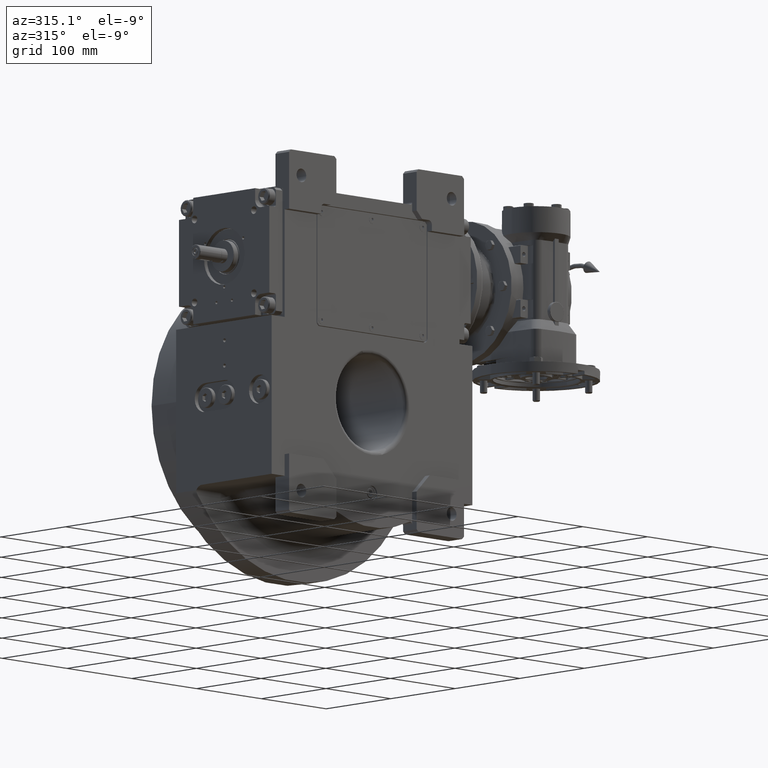
[diagram: clean part render]
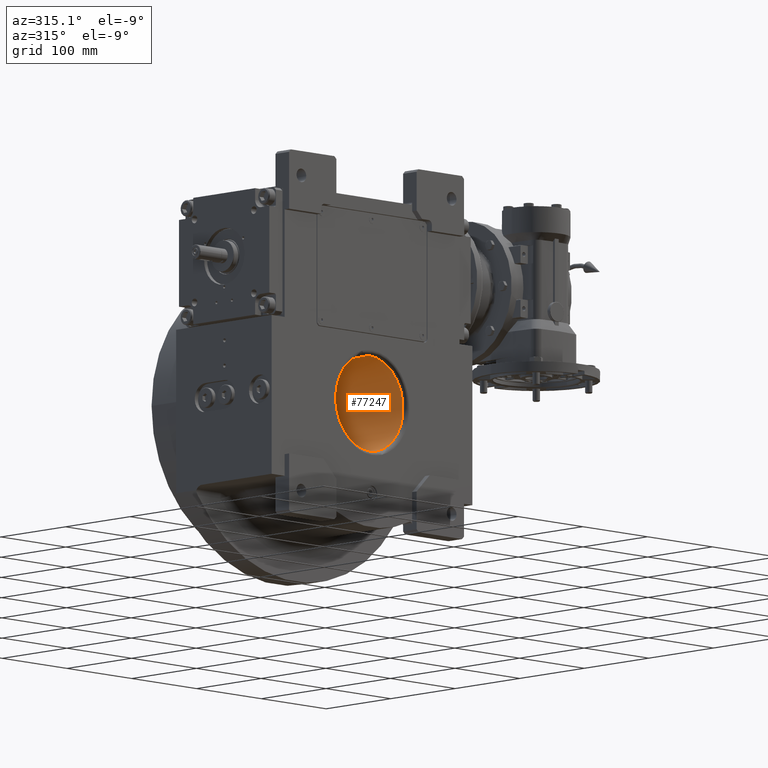
[diagram: same view with one face highlighted and labeled with its STEP entity id]
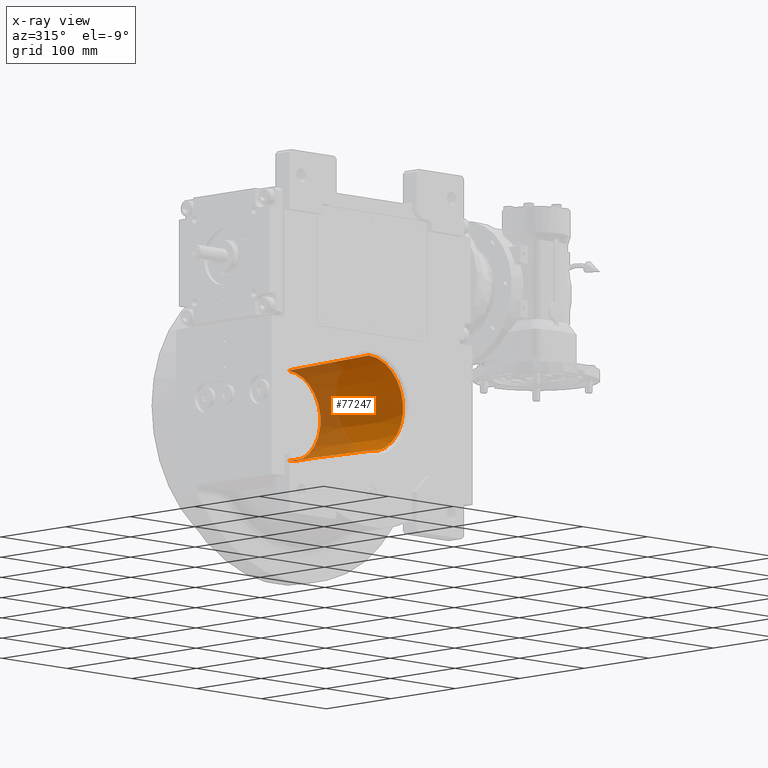
[diagram: x-ray of the same camera — body ghosted, the highlighted face saturated]
A machine part, auxiliary view. The second image highlights one B-rep face of the part: STEP entity #77247.
The next image is the same camera in x-ray: the body ghosted, the highlighted face saturated — about 34% of this face is hidden behind the body in this view.
In plain terms, the highlighted conical surface has half-angle 1.292 deg.
Its self-contained STEP definition (entity closure, byte-faithful):
#1 = LINE ( 'NONE', #656, #69940 ) ;
#656 = CARTESIAN_POINT ( 'NONE',  ( 6.477127694746659705E-15, -68.11275327462179519, -52.88976135205919604 ) ) ;
#727 = ORIENTED_EDGE ( 'NONE', *, *, #70641, .F. ) ;
#15518 = ORIENTED_EDGE ( 'NONE', *, *, #88649, .T. ) ;
#16218 = CIRCLE ( 'NONE', #66193, 50.06614321695208503 ) ;
#17426 = CARTESIAN_POINT ( 'NONE',  ( -1.295425538949331941E-14, -68.11275327462179519, 52.88976135205919604 ) ) ;
#19350 = AXIS2_PLACEMENT_3D ( 'NONE', #98339, #25615, #57554 ) ;
#24151 = DIRECTION ( 'NONE',  ( 0.9882587857891660388, 2.055887273401757417E-08, -0.1527893069246760438 ) ) ;
#25615 = DIRECTION ( 'NONE',  ( 0.000000000000000000, -1.000000000000000000, 1.836909530733564901E-16 ) ) ;
#26278 = DIRECTION ( 'NONE',  ( 5.523317474363207377E-18, 0.9997457016474147196, -0.02255065492437819882 ) ) ;
#28203 = VERTEX_POINT ( 'NONE', #127237 ) ;
#31125 = EDGE_CURVE ( 'NONE', #79156, #31712, #38401, .T. ) ;
#31712 = VERTEX_POINT ( 'NONE', #125272 ) ;
#33143 = VERTEX_POINT ( 'NONE', #123142 ) ;
#35019 = CARTESIAN_POINT ( 'NONE',  ( -5.180071170158429987E-08, -68.11275406274060629, 3.434346457190809174E-14 ) ) ;
#35146 = FACE_OUTER_BOUND ( 'NONE', #48050, .T. ) ;
#38401 = CIRCLE ( 'NONE', #44896, 52.88976140256119152 ) ;
#38938 = CONICAL_SURFACE ( 'NONE', #19350, 1.000000000000000000, 0.02255256665030591981 ) ;
#40890 = CARTESIAN_POINT ( 'NONE',  ( -3.366447261396295104E-11, -68.11275327462200835, 52.88976135205919604 ) ) ;
#43625 = DIRECTION ( 'NONE',  ( -1.997138262491069651E-08, 0.9999999999999997780, -6.123233971614118157E-17 ) ) ;
#44537 = DIRECTION ( 'NONE',  ( -2.310691404686089221E-08, 0.9999999999999997780, -1.490116125507999888E-08 ) ) ;
#44896 = AXIS2_PLACEMENT_3D ( 'NONE', #35019, #44537, #24151 ) ;
#46315 = CARTESIAN_POINT ( 'NONE',  ( -3.083077640091004570E-08, 57.06765196477320501, 2.539432025222259547E-15 ) ) ;
#48050 = EDGE_LOOP ( 'NONE', ( #15518, #86684, #727, #86031 ) ) ;
#53605 = VECTOR ( 'NONE', #26278, 1000.000000000000114 ) ;
#57554 = DIRECTION ( 'NONE',  ( 0.000000000000000000, 0.000000000000000000, 1.000000000000000000 ) ) ;
#64669 = DIRECTION ( 'NONE',  ( 0.9817544671349441865, 1.960699413717118186E-08, -0.1901530074981230556 ) ) ;
#66193 = AXIS2_PLACEMENT_3D ( 'NONE', #46315, #43625, #64669 ) ;
#69940 = VECTOR ( 'NONE', #114173, 1000.000000000000114 ) ;
#70641 = EDGE_CURVE ( 'NONE', #31712, #33143, #1, .T. ) ;
#77247 = ADVANCED_FACE ( 'NONE', ( #35146 ), #38938, .F. ) ;
#79156 = VERTEX_POINT ( 'NONE', #40890 ) ;
#86031 = ORIENTED_EDGE ( 'NONE', *, *, #31125, .F. ) ;
#86684 = ORIENTED_EDGE ( 'NONE', *, *, #101954, .T. ) ;
#88649 = EDGE_CURVE ( 'NONE', #79156, #28203, #109871, .T. ) ;
#98339 = CARTESIAN_POINT ( 'NONE',  ( 0.000000000000000000, 2232.333333333314840, -3.962844522719785252E-13 ) ) ;
#101954 = EDGE_CURVE ( 'NONE', #28203, #33143, #16218, .T. ) ;
#109871 = LINE ( 'NONE', #17426, #53605 ) ;
#114173 = DIRECTION ( 'NONE',  ( -2.761658737181604074E-18, 0.9997457016474147196, 0.02255065492437784494 ) ) ;
#123142 = CARTESIAN_POINT ( 'NONE',  ( 5.632922360699180090E-12, 57.06765196477320501, -50.06614318876450653 ) ) ;
#125272 = CARTESIAN_POINT ( 'NONE',  ( 3.366158563859759886E-11, -68.11275327462200835, -52.88976135205919604 ) ) ;
#127237 = CARTESIAN_POINT ( 'NONE',  ( -5.647091595521470526E-12, 57.06765196477320501, 50.06614318876450653 ) ) ;